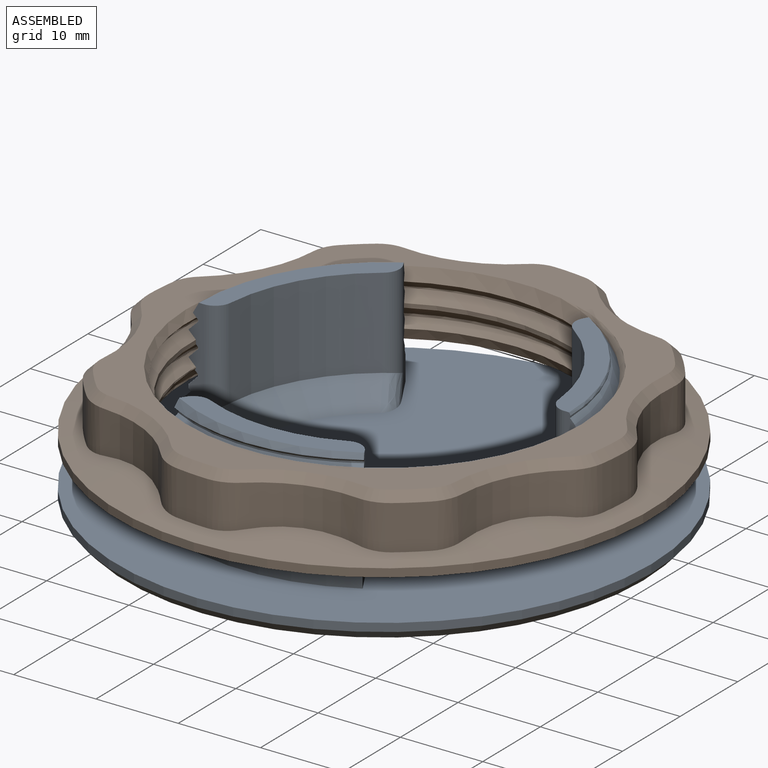
[diagram: assembled view]
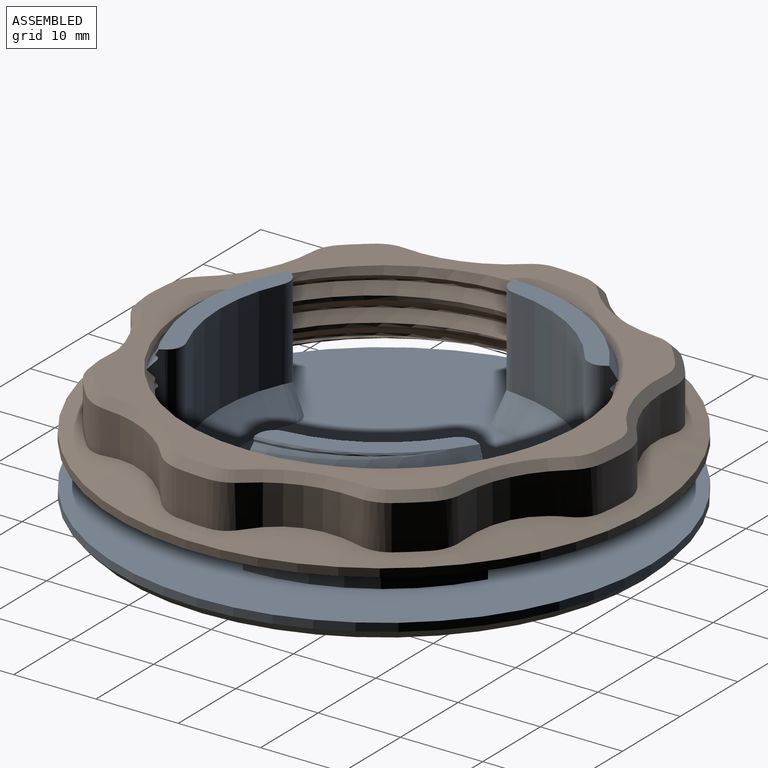
[diagram: assembled view, second angle]
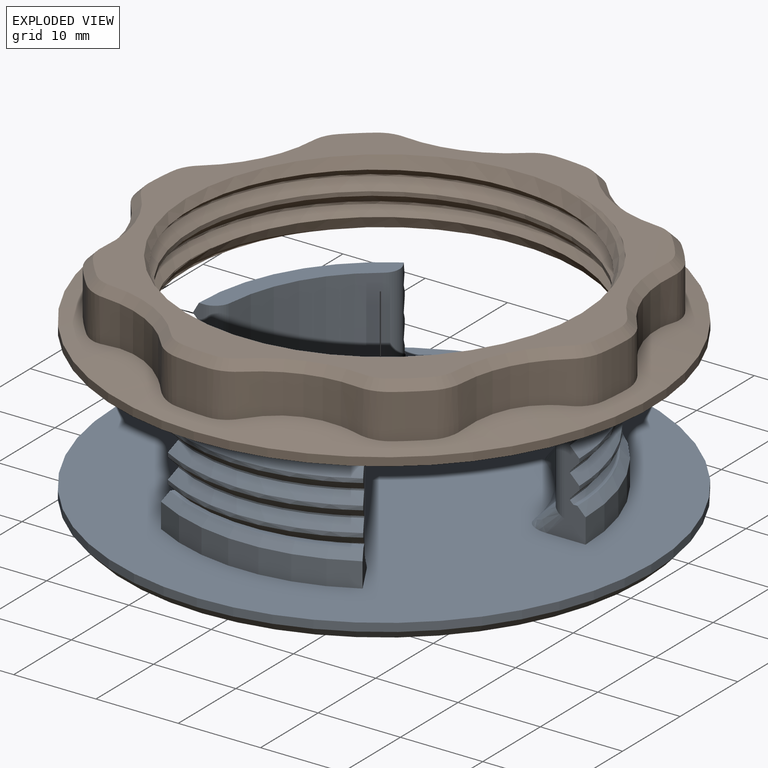
[diagram: exploded view]
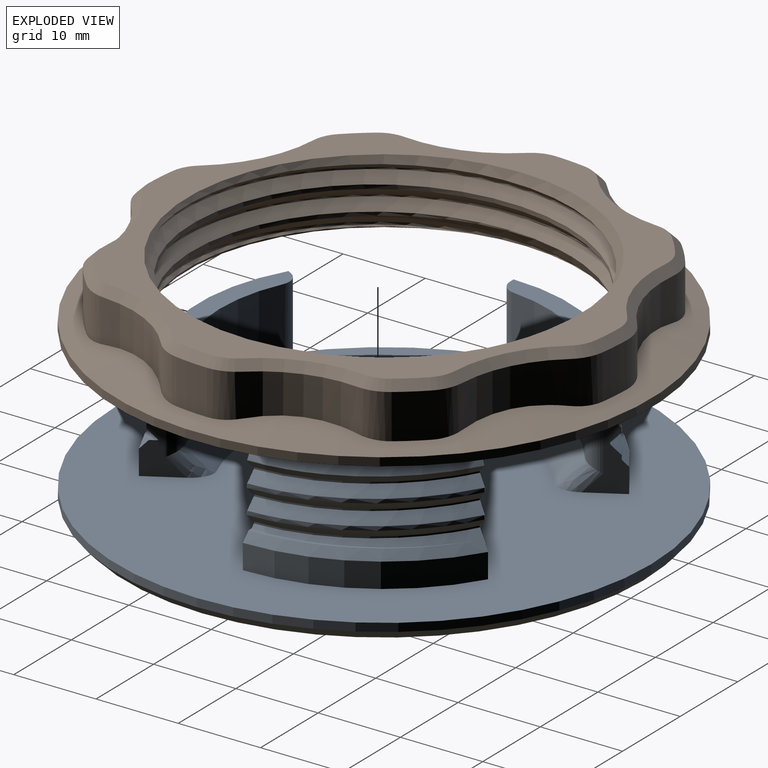
[diagram: exploded view, second angle]
ASSEMBLY  parts=2 mates=2
PART A: 85 faces, bbox 67.6x65.3x21.1 mm
  f0: cylinder r=32.5mm len=65mm, axis (0,0,-1), area 203.9mm2, adj f59,f84
  f1: bspline ~48.3x35.85mm, area 22.1mm2, adj f24,f47,f63,f65
  f2: bspline ~48.3x35.85mm, area 39.5mm2, adj f23,f32,f63,f65
  f3: bspline ~41.4x12.6mm, area 39.5mm2, adj f22,f33,f63,f65
  f4: bspline ~35.85x27.6mm, area 39.5mm2, adj f25,f36,f62,f66
  f5: bspline ~35.85x27.6mm, area 39.5mm2, adj f26,f35,f62,f66
  f6: bspline ~35.85x27.6mm, area 39.5mm2, adj f27,f34,f62,f66
  f7: bspline ~41.4x12.6mm, area 8.3mm2, adj f28,f41,f63
  f8: bspline ~47.8x27.6mm, area 39.5mm2, adj f29,f40,f61,f64
  f9: bspline ~47.8x27.6mm, area 39.5mm2, adj f30,f39,f61,f64
  f10: bspline ~47.8x27.6mm, area 39.5mm2, adj f31,f38,f61,f64
  f11: bspline ~48.3x35.85mm, area 39.5mm2, adj f24,f32,f63,f65
  f12: bspline ~48.3x35.85mm, area 39.5mm2, adj f23,f33,f63,f65
  f13: bspline ~48.3x35.85mm, area 37.3mm2, adj f22,f37,f41,f63,f65
  f14: bspline ~48.3x35.85mm, area 39.5mm2, adj f25,f35,f62,f66
  f15: bspline ~48.3x35.85mm, area 39.5mm2, adj f26,f34,f62,f66
  f16: bspline ~35.85x27.6mm, area 24.6mm2, adj f27,f42,f62,f66
  f17: bspline ~41.4x12.6mm, area 0.6mm2, adj f28,f41,f63
  f18: bspline ~47.8x27.6mm, area 34.2mm2, adj f40,f53,f57,f61,f64
  f19: bspline ~47.8x27.6mm, area 39.5mm2, adj f29,f39,f61,f64
  f20: bspline ~47.8x27.6mm, area 39.5mm2, adj f30,f38,f61,f64
  f21: bspline ~47.8x27.6mm, area 12.1mm2, adj f31,f54,f61,f64
  f22: cylinder r=22.6mm len=19.57mm, axis (0,0,1), area 4.7mm2, adj f3,f13,f63,f65
  f23: cylinder r=22.6mm len=19.57mm, axis (0,0,1), area 4.7mm2, adj f2,f12,f63,f65
  f24: cylinder r=22.6mm len=19.57mm, axis (0,0,1), area 4.7mm2, adj f1,f11,f63,f65
  f25: cylinder r=22.6mm len=19.57mm, axis (0,0,1), area 4.7mm2, adj f4,f14,f62,f66
  f26: cylinder r=22.6mm len=19.57mm, axis (0,0,1), area 4.7mm2, adj f5,f15,f62,f66
  f27: cylinder r=22.6mm len=19.57mm, axis (0,0,1), area 4.7mm2, adj f6,f16,f62,f66
  f28: cylinder r=22.6mm len=17.49mm, axis (0,0,1), area 3.1mm2, adj f7,f17,f41,f63
  f29: cylinder r=22.6mm len=22.6mm, axis (0,0,1), area 4.7mm2, adj f8,f19,f61,f64
  f30: cylinder r=22.6mm len=22.6mm, axis (0,0,1), area 4.7mm2, adj f9,f20,f61,f64
  f31: cylinder r=22.6mm len=22.6mm, axis (0,0,1), area 4.7mm2, adj f10,f21,f61,f64
  f32: cylinder r=23.75mm len=20.57mm, axis (0,0,1), area 12.4mm2, adj f2,f11,f63,f65
  f33: cylinder r=23.75mm len=20.57mm, axis (0,0,1), area 12.4mm2, adj f3,f12,f63,f65
  f34: cylinder r=23.75mm len=20.57mm, axis (0,0,1), area 12.4mm2, adj f6,f15,f62,f66
  f35: cylinder r=23.75mm len=20.57mm, axis (0,0,1), area 12.4mm2, adj f5,f14,f62,f66
  f36: cylinder r=23.75mm len=20.57mm, axis (0,0,1), area 12.4mm2, adj f4,f52,f62,f66
  f37: cylinder r=23.75mm len=4.42mm, axis (0,0,1), area 0.2mm2, adj f13,f41,f63
  f38: cylinder r=23.75mm len=23.75mm, axis (0,0,1), area 12.4mm2, adj f10,f20,f61,f64
  f39: cylinder r=23.75mm len=23.75mm, axis (0,0,1), area 12.4mm2, adj f9,f19,f61,f64
  f40: cylinder r=23.75mm len=23.75mm, axis (0,0,1), area 12.4mm2, adj f8,f18,f61,f64
  f41: cone r=23.75mm half-angle=30deg, axis (0,0,-1), area 46.6mm2, adj f7,f13,f17,f28,f37,f45,f63,f65
  f42: cone r=23.75mm half-angle=30deg, axis (0,0,-1), area 39.5mm2, adj f16,f46,f62,f66
  f43: cylinder r=20mm len=14.52mm, axis (0,0,-1), area 190.3mm2, adj f45,f69,f70,f71,f72,f73
  f44: cylinder r=20mm len=14.52mm, axis (0,0,-1), area 190.3mm2, adj f46,f67,f78,f79,f80,f81
  f45: plane 19.49x11.81mm, normal (0,0,1), area 54.1mm2, adj f41,f43,f63,f65,f70,f72
  f46: plane 19.49x11.81mm, normal (0,0,1), area 54.1mm2, adj f42,f44,f62,f66,f78,f80
  f47: plane 20.66x12.06mm, normal (0,0,1), area 6.1mm2, adj f1,f50,f63
  f48: cylinder r=24.5mm len=21.22mm, axis (0,0,-1), area 77mm2, adj f50,f59,f63,f65
  f49: cylinder r=24.5mm len=21.22mm, axis (0,0,-1), area 77mm2, adj f51,f59,f62,f66
  f50: cone r=23.5mm half-angle=45deg, axis (0,0,-1), area 35.5mm2, adj f47,f48,f63,f65
  f51: cone r=23.5mm half-angle=45deg, axis (0,0,-1), area 31.2mm2, adj f49,f52,f62,f66
  f52: bspline ~41.4x12.6mm, area 4.4mm2, adj f36,f51,f62
  f53: cylinder r=22.6mm len=4.52mm, axis (0,0,1), area 0.2mm2, adj f18,f57,f64
  f54: cone r=23.75mm half-angle=30deg, axis (0,0,-1), area 21.8mm2, adj f21,f56,f61,f64
  f55: cylinder r=20mm len=16.77mm, axis (0,0,-1), area 190.3mm2, adj f56,f68,f74,f75,f76,f77
  f56: plane 22.5x4.53mm, normal (0,0,1), area 54.1mm2, adj f54,f55,f61,f64,f74,f76
  f57: plane 23.67x4.09mm, normal (0,0,1), area 17.9mm2, adj f18,f53,f60,f61,f64
  f58: cylinder r=24.5mm len=24.5mm, axis (0,0,-1), area 77mm2, adj f59,f60,f61,f64
  f59: plane 65x65mm, normal (0,0,1), area 2835.9mm2, adj f0,f48,f49,f58,f61,f62,f63,f64
  f60: cone r=23.5mm half-angle=45deg, axis (0,0,-1), area 35.5mm2, adj f57,f58,f61,f64
  f61: plane 14x4.13mm, normal (-0.87,0.5,0), area 25mm2, adj f8,f9,f10,f18,f19,f20,f21,f29
  f62: plane 14x4.77mm, normal (0,-1,0), area 25mm2, adj f4,f5,f6,f14,f15,f16,f25,f26
  f63: plane 14x4.77mm, normal (0,-1,0), area 24.8mm2, adj f1,f2,f3,f7,f11,f12,f13,f17
  f64: plane 14x4.13mm, normal (0.87,0.5,0), area 24.9mm2, adj f8,f9,f10,f18,f19,f20,f21,f29
  f65: plane 14x4.13mm, normal (-0.87,0.5,0), area 24.7mm2, adj f1,f2,f3,f11,f12,f13,f22,f23
  f66: plane 14x4.13mm, normal (0.87,0.5,0), area 24.8mm2, adj f4,f5,f6,f14,f15,f16,f25,f26
  f67: cone r=17mm half-angle=45deg, axis (0,0,1), area 66.3mm2, adj f44,f59,f79,f81
  f68: cone r=17mm half-angle=45deg, axis (0,0,1), area 66.3mm2, adj f55,f59,f75,f77
  f69: cone r=17mm half-angle=45deg, axis (0,0,1), area 66.3mm2, adj f43,f59,f71,f73
  f70: cylinder r=2mm len=11.83mm, axis (0,0,-1), area 33.8mm2, adj f43,f45,f63,f71
  f71: bspline ~20.74x20.67mm, area 11.4mm2, adj f43,f59,f63,f69,f70
  f72: cylinder r=2mm len=11.83mm, axis (0,0,-1), area 33.8mm2, adj f43,f45,f65,f73
  f73: bspline ~20.67x18.86mm, area 11.4mm2, adj f43,f59,f65,f69,f72
  f74: cylinder r=2mm len=11.83mm, axis (0,0,-1), area 33.8mm2, adj f55,f56,f61,f75
  f75: bspline ~20.67x17.85mm, area 11.4mm2, adj f55,f59,f61,f68,f74
  f76: cylinder r=2mm len=11.83mm, axis (0,0,-1), area 33.8mm2, adj f55,f56,f64,f77
  f77: bspline ~20.67x17.85mm, area 11.4mm2, adj f55,f59,f64,f68,f76
  f78: cylinder r=2mm len=11.83mm, axis (0,0,-1), area 33.8mm2, adj f44,f46,f66,f79
  f79: bspline ~20.67x18.86mm, area 11.4mm2, adj f44,f59,f66,f67,f78
  f80: cylinder r=2mm len=11.83mm, axis (0,0,-1), area 33.8mm2, adj f44,f46,f62,f81
  f81: bspline ~20.74x20.67mm, area 11.4mm2, adj f44,f59,f62,f67,f80
  f82: torus R=5mm, axis (0,0,1), area 3042.1mm2, adj f83,f84
  f83: plane 10x10mm, normal (0,0,-1), area 78.5mm2, adj f82
  f84: cone r=32.5mm half-angle=43deg, axis (0,0,1), area 294.9mm2, adj f0,f82
PART B: 76 faces, bbox 65.1x65.1x10.9 mm
  f0: bspline ~55.54x48.1mm, area 509.8mm2, adj f2,f3,f4,f13,f40,f41,f74,f75
  f1: bspline ~55.54x48.1mm, area 510.1mm2, adj f2,f3,f4,f13,f40,f41,f74,f75
  f2: plane 55.41x55.41mm, normal (0,0,1), area 592mm2, adj f0,f1,f13,f42,f43,f44,f45,f46
  f3: plane 65.03x65.03mm, normal (0,0,-1), area 1521.8mm2, adj f0,f1,f38,f40,f75
  f4: cylinder r=22.9mm len=45.8mm, axis (0,0,1), area 108.8mm2, adj f0,f1,f74,f75
  f5: cylinder r=30mm len=5.41mm, axis (0,0,-1), area 21.5mm2, adj f35,f37,f39,f69
  f6: cylinder r=30mm len=5.41mm, axis (0,0,-1), area 21.5mm2, adj f32,f34,f39,f61
  f7: cylinder r=30mm len=5.41mm, axis (0,0,-1), area 21.5mm2, adj f30,f33,f39,f53
  f8: cylinder r=30mm len=5.41mm, axis (0,0,-1), area 21.5mm2, adj f28,f31,f39,f45
  f9: cylinder r=30mm len=5.41mm, axis (0,0,-1), area 21.5mm2, adj f26,f29,f39,f46
  f10: cylinder r=30mm len=5.41mm, axis (0,0,-1), area 21.5mm2, adj f24,f27,f39,f54
  f11: cylinder r=30mm len=5.41mm, axis (0,0,-1), area 21.5mm2, adj f22,f25,f39,f62
  f12: cylinder r=30mm len=5.41mm, axis (0,0,-1), area 21.5mm2, adj f23,f36,f39,f70
  f13: cylinder r=24.05mm len=48.1mm, axis (0,0,1), area 50.5mm2, adj f0,f1,f2,f41
  f14: cylinder r=15mm len=8.51mm, axis (0,0,1), area 63.8mm2, adj f22,f23,f39,f66
  f15: cylinder r=15mm len=12.03mm, axis (0,0,1), area 63.8mm2, adj f24,f25,f39,f58
  f16: cylinder r=15mm len=8.51mm, axis (0,0,1), area 63.8mm2, adj f26,f27,f39,f50
  f17: cylinder r=15mm len=12.03mm, axis (0,0,1), area 61mm2, adj f28,f29,f39,f42
  f18: cylinder r=15mm len=8.51mm, axis (0,0,1), area 63.8mm2, adj f30,f31,f39,f49
  f19: cylinder r=15mm len=12.03mm, axis (0,0,1), area 63.8mm2, adj f32,f33,f39,f57
  f20: cylinder r=15mm len=8.51mm, axis (0,0,1), area 63.8mm2, adj f34,f35,f39,f65
  f21: cylinder r=15mm len=12.03mm, axis (0,0,1), area 63.8mm2, adj f36,f37,f39,f73
  f22: cylinder r=5mm len=5.41mm, axis (0,0,-1), area 19.5mm2, adj f11,f14,f39,f64
  f23: cylinder r=5mm len=5.41mm, axis (0,0,-1), area 19.5mm2, adj f12,f14,f39,f68
  f24: cylinder r=5mm len=5.41mm, axis (0,0,-1), area 19.5mm2, adj f10,f15,f39,f56
  f25: cylinder r=5mm len=5.41mm, axis (0,0,-1), area 19.5mm2, adj f11,f15,f39,f60
  f26: cylinder r=5mm len=5.41mm, axis (0,0,-1), area 19.5mm2, adj f9,f16,f39,f48
  f27: cylinder r=5mm len=5.41mm, axis (0,0,-1), area 19.5mm2, adj f10,f16,f39,f52
  f28: cylinder r=5mm len=5.41mm, axis (0,0,-1), area 19.5mm2, adj f8,f17,f39,f43
  f29: cylinder r=5mm len=5.41mm, axis (0,0,-1), area 19.5mm2, adj f9,f17,f39,f44
  f30: cylinder r=5mm len=5.41mm, axis (0,0,-1), area 19.5mm2, adj f7,f18,f39,f51
  f31: cylinder r=5mm len=5.41mm, axis (0,0,-1), area 19.5mm2, adj f8,f18,f39,f47
  f32: cylinder r=5mm len=5.41mm, axis (0,0,-1), area 19.5mm2, adj f6,f19,f39,f59
  f33: cylinder r=5mm len=5.41mm, axis (0,0,-1), area 19.5mm2, adj f7,f19,f39,f55
  f34: cylinder r=5mm len=5.41mm, axis (0,0,-1), area 19.5mm2, adj f6,f20,f39,f63
  f35: cylinder r=5mm len=5.41mm, axis (0,0,-1), area 19.5mm2, adj f5,f20,f39,f67
  f36: cylinder r=5mm len=5.41mm, axis (0,0,-1), area 19.5mm2, adj f12,f21,f39,f72
  f37: cylinder r=5mm len=5.41mm, axis (0,0,-1), area 19.5mm2, adj f5,f21,f39,f71
  f38: cylinder r=32.5mm len=65mm, axis (0,0,-1), area 204.2mm2, adj f3,f39
  f39: cone r=32.5mm half-angle=76.8deg, axis (0,0,-1), area 769.6mm2, adj f5,f6,f7,f8,f9,f10,f11,f12
  f40: cylinder r=24mm len=48mm, axis (0,0,-1), area 46.4mm2, adj f0,f1,f3,f41
  f41: cone r=32.5mm half-angle=76.8deg, axis (0,0,-1), area 0.7mm2, adj f0,f1,f13,f40
  f42: cone r=15mm half-angle=45deg, axis (0,0,1), area 18.1mm2, adj f2,f17,f43,f44
  f43: cone r=4mm half-angle=45deg, axis (0,0,-1), area 4.7mm2, adj f2,f28,f42,f45
  f44: cone r=4mm half-angle=45deg, axis (0,0,-1), area 4.7mm2, adj f2,f29,f42,f46
  f45: cone r=29mm half-angle=45deg, axis (0,0,-1), area 5.5mm2, adj f2,f8,f43,f47
  f46: cone r=29mm half-angle=45deg, axis (0,0,-1), area 5.5mm2, adj f2,f9,f44,f48
  f47: cone r=4mm half-angle=45deg, axis (0,0,-1), area 4.7mm2, adj f2,f31,f45,f49
  f48: cone r=4mm half-angle=45deg, axis (0,0,-1), area 4.7mm2, adj f2,f26,f46,f50
  f49: cone r=15mm half-angle=45deg, axis (0,0,1), area 18.1mm2, adj f2,f18,f47,f51
  f50: cone r=15mm half-angle=45deg, axis (0,0,1), area 18.1mm2, adj f2,f16,f48,f52
  f51: cone r=4mm half-angle=45deg, axis (0,0,-1), area 4.7mm2, adj f2,f30,f49,f53
  f52: cone r=4mm half-angle=45deg, axis (0,0,-1), area 4.7mm2, adj f2,f27,f50,f54
  f53: cone r=29mm half-angle=45deg, axis (0,0,-1), area 5.5mm2, adj f2,f7,f51,f55
  f54: cone r=29mm half-angle=45deg, axis (0,0,-1), area 5.5mm2, adj f2,f10,f52,f56
  f55: cone r=4mm half-angle=45deg, axis (0,0,-1), area 4.7mm2, adj f2,f33,f53,f57
  f56: cone r=4mm half-angle=45deg, axis (0,0,-1), area 4.7mm2, adj f2,f24,f54,f58
  f57: cone r=15mm half-angle=45deg, axis (0,0,1), area 18.1mm2, adj f2,f19,f55,f59
  f58: cone r=15mm half-angle=45deg, axis (0,0,1), area 18.1mm2, adj f2,f15,f56,f60
  f59: cone r=4mm half-angle=45deg, axis (0,0,-1), area 4.7mm2, adj f2,f32,f57,f61
  f60: cone r=4mm half-angle=45deg, axis (0,0,-1), area 4.7mm2, adj f2,f25,f58,f62
  f61: cone r=29mm half-angle=45deg, axis (0,0,-1), area 5.5mm2, adj f2,f6,f59,f63
  f62: cone r=29mm half-angle=45deg, axis (0,0,-1), area 5.5mm2, adj f2,f11,f60,f64
  f63: cone r=4mm half-angle=45deg, axis (0,0,-1), area 4.7mm2, adj f2,f34,f61,f65
  f64: cone r=4mm half-angle=45deg, axis (0,0,-1), area 4.7mm2, adj f2,f22,f62,f66
  f65: cone r=15mm half-angle=45deg, axis (0,0,1), area 18.1mm2, adj f2,f20,f63,f67
  f66: cone r=15mm half-angle=45deg, axis (0,0,1), area 18.1mm2, adj f2,f14,f64,f68
  f67: cone r=4mm half-angle=45deg, axis (0,0,-1), area 4.7mm2, adj f2,f35,f65,f69
  f68: cone r=4mm half-angle=45deg, axis (0,0,-1), area 4.7mm2, adj f2,f23,f66,f70
  f69: cone r=29mm half-angle=45deg, axis (0,0,-1), area 5.5mm2, adj f2,f5,f67,f71
  f70: cone r=29mm half-angle=45deg, axis (0,0,-1), area 5.5mm2, adj f2,f12,f68,f72
  f71: cone r=4mm half-angle=45deg, axis (0,0,-1), area 4.7mm2, adj f2,f37,f69,f73
  f72: cone r=4mm half-angle=45deg, axis (0,0,-1), area 4.7mm2, adj f2,f36,f70,f73
  f73: cone r=15mm half-angle=45deg, axis (0,0,1), area 18.1mm2, adj f2,f21,f71,f72
  f74: cone r=23.9mm half-angle=30deg, axis (0,0,1), area 147.7mm2, adj f0,f1,f2,f4
  f75: cone r=23.9mm half-angle=30deg, axis (0,0,-1), area 147.7mm2, adj f0,f1,f3,f4
PLACE A at identity fixed
PLACE B rot(axis=(0,0,-1),72.3deg) t=(0,0,8)mm
MATE parallel A.f0 <-> B.f3  axis (0,0,1) through (0,0,3)mm
MATE cylindrical A.f48 <-> B.f13  axis (0,0,-1) through (0,0,4.5)mm
